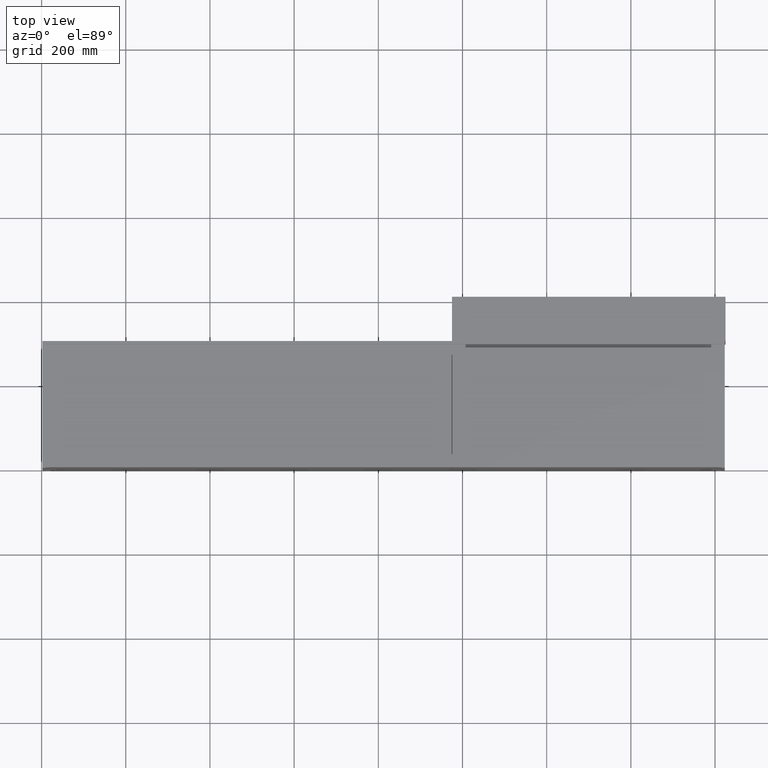
[diagram: clean part render]
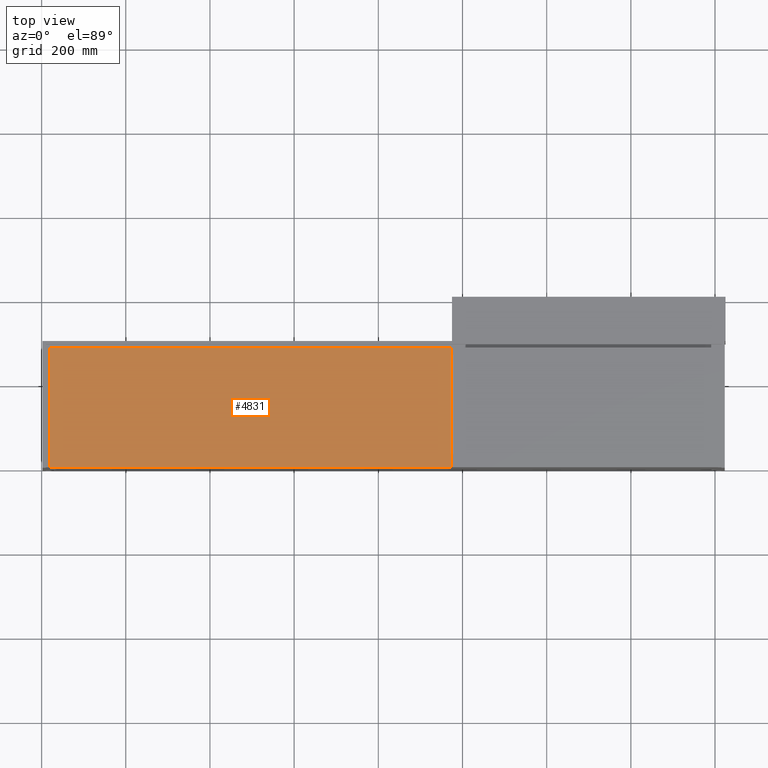
[diagram: same view with one face highlighted and labeled with its STEP entity id]
A machine part, top view. The second image highlights one B-rep face of the part: STEP entity #4831.
In plain terms, the highlighted planar face has unit normal (0, 0, -1).
Its self-contained STEP definition (entity closure, byte-faithful):
#170 = ORIENTED_EDGE ( 'NONE', *, *, #8637, .T. ) ;
#309 = PLANE ( 'NONE',  #3122 ) ;
#310 = VECTOR ( 'NONE', #14835, 1000.000000000000000 ) ;
#436 = CARTESIAN_POINT ( 'NONE',  ( 974.0000000000002274, 0.0000000000000000000, -0.9999999999999991118 ) ) ;
#1552 = ORIENTED_EDGE ( 'NONE', *, *, #7760, .F. ) ;
#2901 = DIRECTION ( 'NONE',  ( -0.0000000000000000000, -1.000000000000000000, -0.0000000000000000000 ) ) ;
#3122 = AXIS2_PLACEMENT_3D ( 'NONE', #5302, #10297, #15296 ) ;
#3380 = EDGE_LOOP ( 'NONE', ( #11518, #170, #5655, #1552 ) ) ;
#4632 = CARTESIAN_POINT ( 'NONE',  ( 18.00000000000007105, 0.0000000000000000000, -1.000000000000000888 ) ) ;
#4831 = ADVANCED_FACE ( 'NONE', ( #11515 ), #309, .F. ) ;
#4842 = LINE ( 'NONE', #9835, #310 ) ;
#4920 = DIRECTION ( 'NONE',  ( -0.0000000000000000000, -1.000000000000000000, -0.0000000000000000000 ) ) ;
#5302 = CARTESIAN_POINT ( 'NONE',  ( 18.00000000000007105, 1248.088385035609690, -1.000000000000000888 ) ) ;
#5655 = ORIENTED_EDGE ( 'NONE', *, *, #13489, .T. ) ;
#6428 = VERTEX_POINT ( 'NONE', #15515 ) ;
#7726 = EDGE_CURVE ( 'NONE', #6428, #13066, #4842, .T. ) ;
#7760 = EDGE_CURVE ( 'NONE', #13066, #12940, #11147, .T. ) ;
#8637 = EDGE_CURVE ( 'NONE', #6428, #11289, #9112, .T. ) ;
#8788 = VECTOR ( 'NONE', #9619, 1000.000000000000000 ) ;
#9112 = LINE ( 'NONE', #14111, #14445 ) ;
#9619 = DIRECTION ( 'NONE',  ( 1.000000000000000000, 0.0000000000000000000, 1.814564305415070102E-18 ) ) ;
#9835 = CARTESIAN_POINT ( 'NONE',  ( 18.00000000000007105, 284.0000000000000568, -1.000000000000000888 ) ) ;
#10297 = DIRECTION ( 'NONE',  ( 1.814564305415070102E-18, 0.0000000000000000000, -1.000000000000000000 ) ) ;
#11147 = LINE ( 'NONE', #16136, #11545 ) ;
#11289 = VERTEX_POINT ( 'NONE', #15500 ) ;
#11515 = FACE_OUTER_BOUND ( 'NONE', #3380, .T. ) ;
#11518 = ORIENTED_EDGE ( 'NONE', *, *, #7726, .F. ) ;
#11545 = VECTOR ( 'NONE', #4920, 1000.000000000000000 ) ;
#12525 = CARTESIAN_POINT ( 'NONE',  ( 974.0000000000002274, 284.0000000000000568, -0.9999999999999991118 ) ) ;
#12940 = VERTEX_POINT ( 'NONE', #436 ) ;
#13066 = VERTEX_POINT ( 'NONE', #12525 ) ;
#13489 = EDGE_CURVE ( 'NONE', #11289, #12940, #15847, .T. ) ;
#14111 = CARTESIAN_POINT ( 'NONE',  ( 18.00000000000007105, 1248.088385035609690, -1.000000000000000888 ) ) ;
#14445 = VECTOR ( 'NONE', #2901, 1000.000000000000000 ) ;
#14835 = DIRECTION ( 'NONE',  ( 1.000000000000000000, -0.0000000000000000000, 1.814564305415070102E-18 ) ) ;
#15296 = DIRECTION ( 'NONE',  ( -1.000000000000000000, 0.0000000000000000000, -1.814564305415070102E-18 ) ) ;
#15500 = CARTESIAN_POINT ( 'NONE',  ( 18.00000000000007105, 0.0000000000000000000, -1.000000000000000888 ) ) ;
#15515 = CARTESIAN_POINT ( 'NONE',  ( 18.00000000000007105, 284.0000000000000568, -1.000000000000000888 ) ) ;
#15847 = LINE ( 'NONE', #4632, #8788 ) ;
#16136 = CARTESIAN_POINT ( 'NONE',  ( 974.0000000000002274, 1248.088385035609690, -0.9999999999999991118 ) ) ;